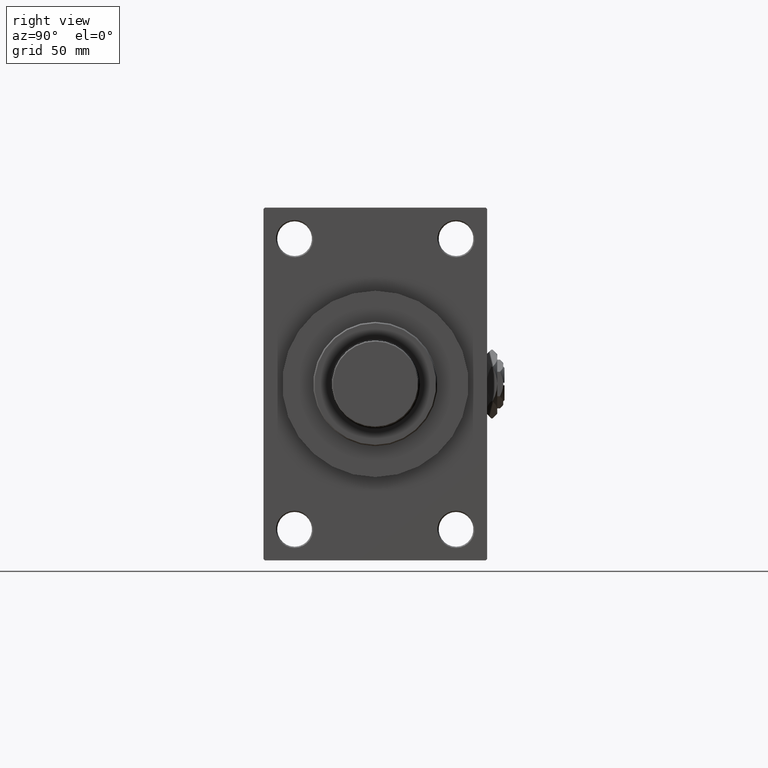
[diagram: clean part render]
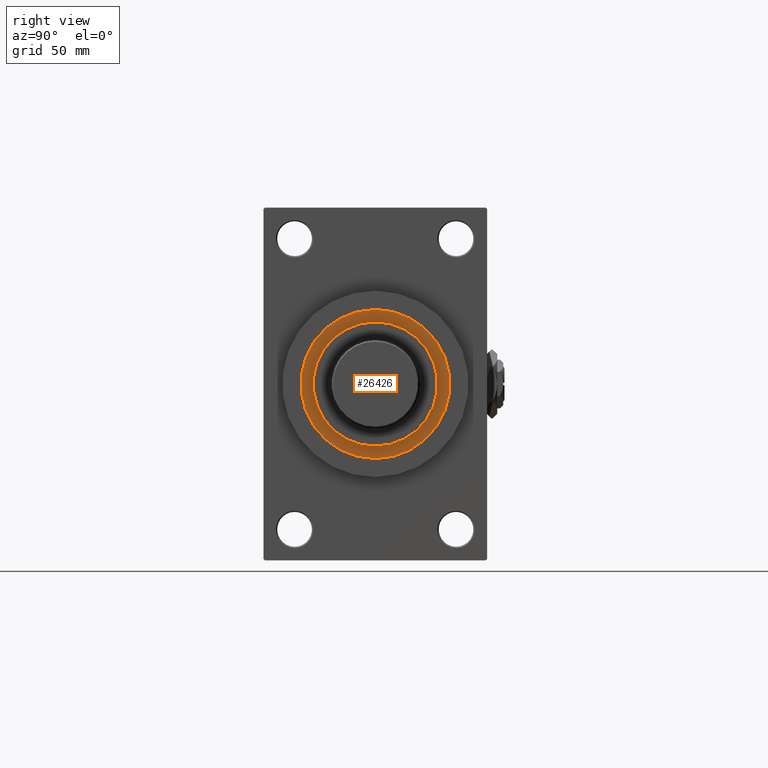
[diagram: same view with one face highlighted and labeled with its STEP entity id]
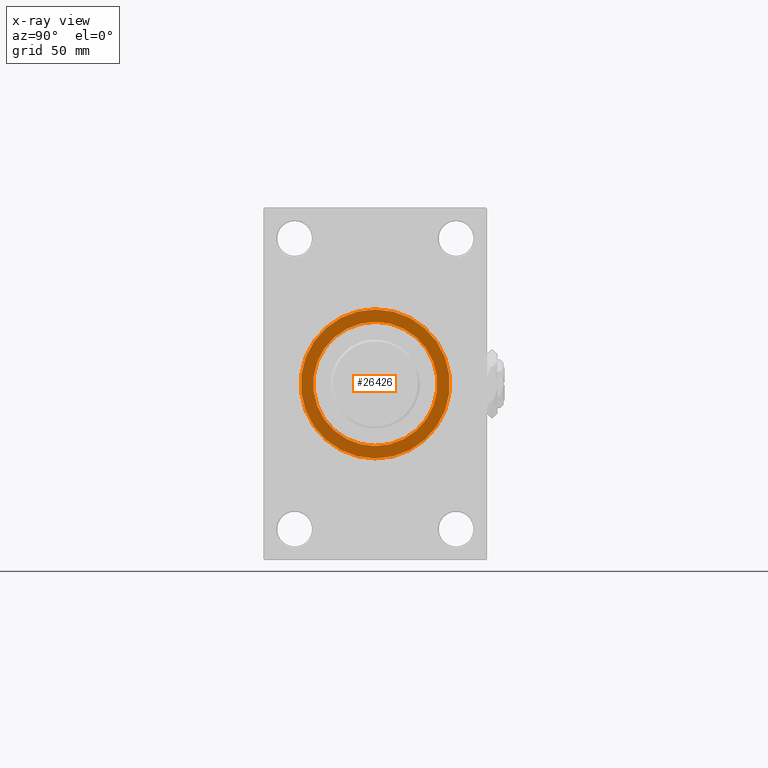
[diagram: x-ray of the same camera — body ghosted, the highlighted face saturated]
A machine part, right view. The second image highlights one B-rep face of the part: STEP entity #26426.
The next image is the same camera in x-ray: the body ghosted, the highlighted face saturated — about 0% of this face is hidden behind the body in this view.
In plain terms, the highlighted planar face has unit normal (1, 0, 0).
Its self-contained STEP definition (entity closure, byte-faithful):
#680 = PLANE ( 'NONE',  #23850 ) ;
#1656 = DIRECTION ( 'NONE',  ( 0.000000000000000000, 0.000000000000000000, 1.000000000000000000 ) ) ;
#2910 = VERTEX_POINT ( 'NONE', #13136 ) ;
#3622 = ORIENTED_EDGE ( 'NONE', *, *, #48999, .T. ) ;
#5914 = ORIENTED_EDGE ( 'NONE', *, *, #11090, .F. ) ;
#7428 = DIRECTION ( 'NONE',  ( 0.000000000000000000, 0.000000000000000000, 1.000000000000000000 ) ) ;
#8011 = CARTESIAN_POINT ( 'NONE',  ( -25.00000000000000000, 0.000000000000000000, 43.25999999999999801 ) ) ;
#9931 = DIRECTION ( 'NONE',  ( 1.000000000000000000, 0.000000000000000000, 0.000000000000000000 ) ) ;
#10744 = CARTESIAN_POINT ( 'NONE',  ( 30.00000000000000000, 3.673940397442059178E-15, 43.25999999999999801 ) ) ;
#11090 = EDGE_CURVE ( 'NONE', #39304, #2910, #27445, .T. ) ;
#12600 = AXIS2_PLACEMENT_3D ( 'NONE', #35301, #39296, #31809 ) ;
#12645 = DIRECTION ( 'NONE',  ( 1.000000000000000000, 0.000000000000000000, -0.000000000000000000 ) ) ;
#13136 = CARTESIAN_POINT ( 'NONE',  ( 25.00000000000000000, 3.061616997868383043E-15, 43.25999999999999801 ) ) ;
#17411 = VERTEX_POINT ( 'NONE', #22479 ) ;
#17838 = AXIS2_PLACEMENT_3D ( 'NONE', #24703, #32693, #9931 ) ;
#18878 = ORIENTED_EDGE ( 'NONE', *, *, #22588, .F. ) ;
#19182 = CARTESIAN_POINT ( 'NONE',  ( 0.000000000000000000, 0.000000000000000000, 43.25999999999999801 ) ) ;
#19459 = EDGE_LOOP ( 'NONE', ( #34465, #3622 ) ) ;
#20154 = CARTESIAN_POINT ( 'NONE',  ( 0.000000000000000000, 0.000000000000000000, 43.25999999999999801 ) ) ;
#22406 = CARTESIAN_POINT ( 'NONE',  ( 0.000000000000000000, 0.000000000000000000, 43.25999999999999801 ) ) ;
#22479 = CARTESIAN_POINT ( 'NONE',  ( -30.00000000000000000, 0.000000000000000000, 43.25999999999999801 ) ) ;
#22588 = EDGE_CURVE ( 'NONE', #2910, #39304, #39007, .T. ) ;
#22601 = AXIS2_PLACEMENT_3D ( 'NONE', #19182, #7428, #42661 ) ;
#23850 = AXIS2_PLACEMENT_3D ( 'NONE', #20154, #1656, #12645 ) ;
#24703 = CARTESIAN_POINT ( 'NONE',  ( 0.000000000000000000, 0.000000000000000000, 43.25999999999999801 ) ) ;
#25957 = VERTEX_POINT ( 'NONE', #10744 ) ;
#26426 = ADVANCED_FACE ( 'NONE', ( #46904, #39650 ), #680, .T. ) ;
#27445 = CIRCLE ( 'NONE', #17838, 25.00000000000000000 ) ;
#30184 = CIRCLE ( 'NONE', #12600, 30.00000000000000000 ) ;
#31030 = AXIS2_PLACEMENT_3D ( 'NONE', #22406, #45150, #44416 ) ;
#31569 = EDGE_CURVE ( 'NONE', #17411, #25957, #38579, .T. ) ;
#31809 = DIRECTION ( 'NONE',  ( 1.000000000000000000, 0.000000000000000000, 0.000000000000000000 ) ) ;
#32693 = DIRECTION ( 'NONE',  ( 0.000000000000000000, 0.000000000000000000, 1.000000000000000000 ) ) ;
#34465 = ORIENTED_EDGE ( 'NONE', *, *, #31569, .T. ) ;
#35301 = CARTESIAN_POINT ( 'NONE',  ( 0.000000000000000000, 0.000000000000000000, 43.25999999999999801 ) ) ;
#38355 = EDGE_LOOP ( 'NONE', ( #5914, #18878 ) ) ;
#38579 = CIRCLE ( 'NONE', #22601, 30.00000000000000000 ) ;
#39007 = CIRCLE ( 'NONE', #31030, 25.00000000000000000 ) ;
#39296 = DIRECTION ( 'NONE',  ( 0.000000000000000000, 0.000000000000000000, 1.000000000000000000 ) ) ;
#39304 = VERTEX_POINT ( 'NONE', #8011 ) ;
#39650 = FACE_OUTER_BOUND ( 'NONE', #19459, .T. ) ;
#42661 = DIRECTION ( 'NONE',  ( 1.000000000000000000, 0.000000000000000000, 0.000000000000000000 ) ) ;
#44416 = DIRECTION ( 'NONE',  ( 1.000000000000000000, 0.000000000000000000, 0.000000000000000000 ) ) ;
#45150 = DIRECTION ( 'NONE',  ( 0.000000000000000000, 0.000000000000000000, 1.000000000000000000 ) ) ;
#46904 = FACE_BOUND ( 'NONE', #38355, .T. ) ;
#48999 = EDGE_CURVE ( 'NONE', #25957, #17411, #30184, .T. ) ;